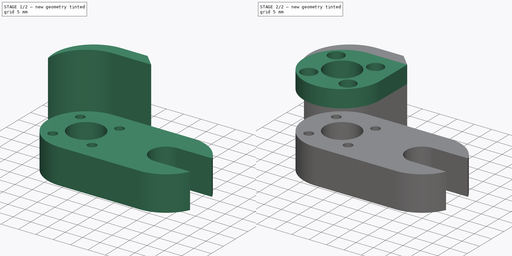
[diagram: build sequence overview — one tinted view per stage of 2, left to right]
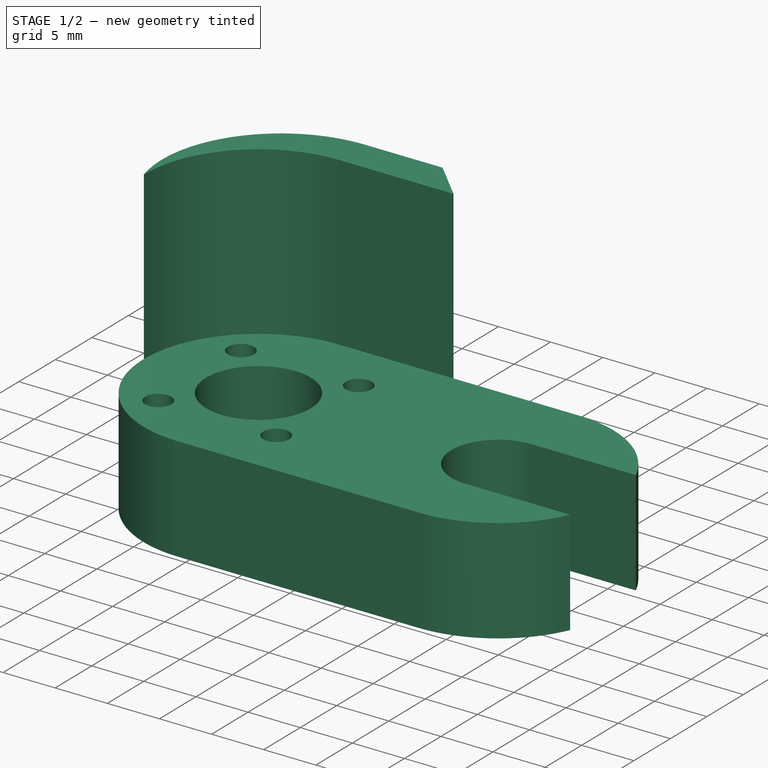
[diagram: stage 1 of 2 — iso view after this stage's code; geometry added in this stage tinted green]
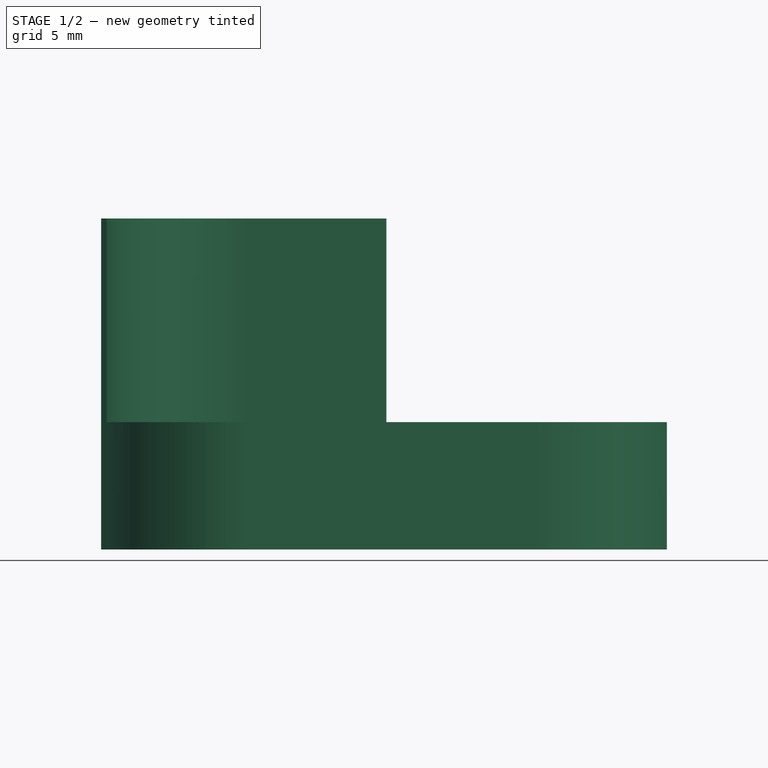
[diagram: stage 1 of 2 — front view after this stage's code; geometry added in this stage tinted green]
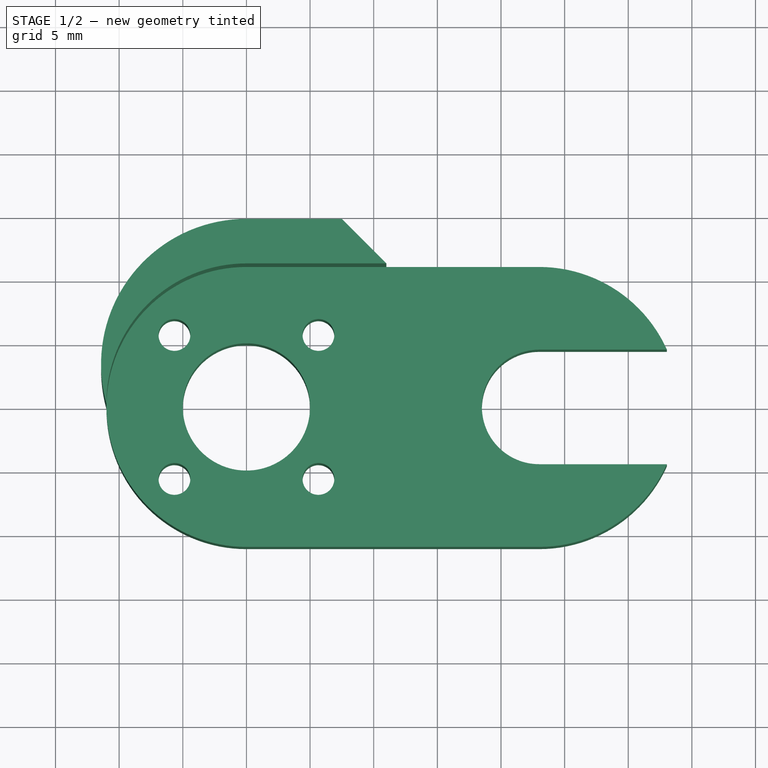
[diagram: stage 1 of 2 — top view after this stage's code; geometry added in this stage tinted green]
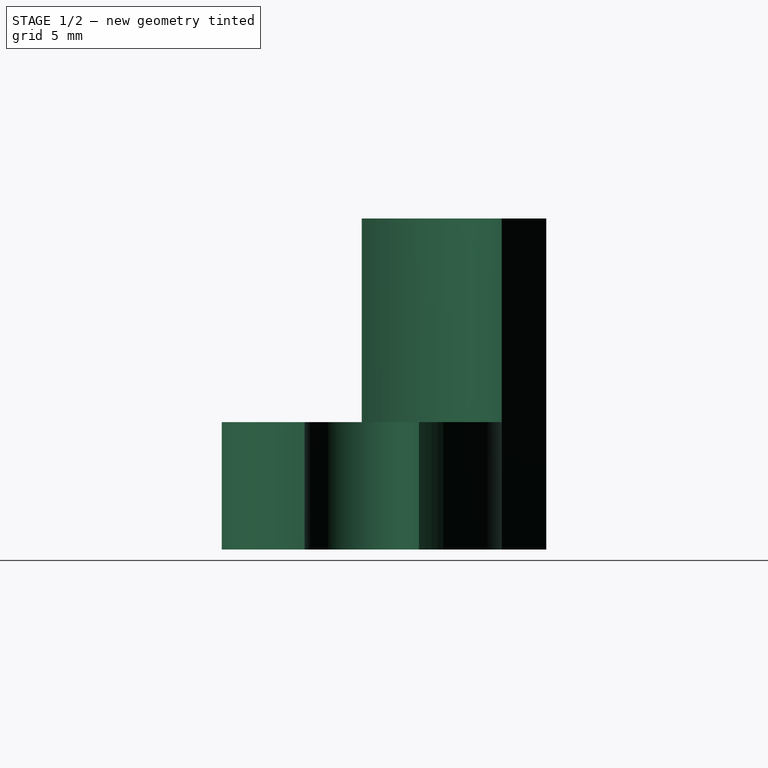
[diagram: stage 1 of 2 — right view after this stage's code; geometry added in this stage tinted green]
FCSTD DOCUMENT  (FreeCAD 0.18R4 (GitTag))
Label: ZAntiWobbler4
License: All rights reserved
LicenseURL: http://en.wikipedia.org/wiki/All_rights_reserved
objects: Sketcher::SketchObject×3, PartDesign::Pad×3, Spreadsheet::Sheet×2, PartDesign::Body×1
note: 10 computed .brp shape members not serialized (recipe doc carries the construction recipe); baked Part::Feature solids carry a one-line shape summary decoded from their .brp

FEATURE [Spreadsheet::Sheet] Spreadsheet  label="Dimensions"
  cells = A1=ZScrewHoleRadius; B1(ZScrewHoleRadius)==4mm; A2=ZScrewHoleHolderOuterRadius; B2(ZScrewHoleHolderOuterRadius)==5mm; A3=AntiWobblerRadius; B3(AntiWobblerRadius)==11mm; A4=AntiWobblerHeight; B4(AntiWobblerHeight)==10mm; A5=AntiWobblerM3ScrewSeparation; B5(AntiWobblerM3ScrewSeparation)==16mm; A6=ZscrewtoZGuideSeparation; B6(ZscrewtoZGuideSeparation)==23mm; A7=ZGuideRadius; B7(ZGuideRadius)==4mm; A8=ZGuideClearance; B8(ZGuideClearance)==0.5mm; A9=AntiWobblersSeparationHeight; B9(AntiWobblersSeparationHeight)==11mm; A10=AntiWobblersSeparationThickness; B10(AntiWobblersSeparationThickness)==3.5mm; A11=ZScrewHolderBottomHeight; B11(ZScrewHolderBottomHeight)==5mm
FEATURE [Sketcher::SketchObject] Sketch  label="Sketch_BaseZScrewHolder"
  MapMode = 5
  Support = -> [XY_Plane]
  expr: Constraints[25] = M3.M3ThreadRadius
  expr: Constraints[33] = Dimensions.AntiWobblerM3ScrewSeparation
  expr: Constraints[32] = Dimensions.AntiWobblerM3ScrewSeparation
  expr: Constraints[26] = M3.M3ThreadRadius
  expr: Constraints[27] = M3.M3ThreadRadius
  expr: Constraints[24] = M3.M3ThreadRadius
  expr: Constraints[12] = Dimensions.AntiWobblerRadius
  expr: Constraints[11] = Dimensions.AntiWobblerRadius
  expr: Constraints[42] = Dimensions.AntiWobblerM3ScrewSeparation / 2
  expr: Constraints[13] = Dimensions.ZGuideRadius + Dimensions.ZGuideClearance
  expr: Constraints[10] = Dimensions.ZscrewtoZGuideSeparation
  sketch-geometry (16):
    g0: LineSegment StartX=-1.3e-15 StartY=11 StartZ=0 EndX=23 EndY=11 EndZ=0
    g1: LineSegment StartX=23 StartY=-11 StartZ=0 EndX=-3.6e-15 EndY=-11 EndZ=0
    g2: ArcOfCircle CenterX=-4e-15 CenterY=4e-15 CenterZ=0 NormalX=0 NormalY=0 NormalZ=1 AngleXU=0 Radius=11 StartAngle=1.5708 EndAngle=3.14159
    g3: ArcOfCircle CenterX=23 CenterY=-6e-16 CenterZ=0 NormalX=0 NormalY=0 NormalZ=1 AngleXU=0 Radius=11 StartAngle=4.71239 EndAngle=5.86173
    g4: Circle CenterX=-4e-15 CenterY=4e-15 CenterZ=0 NormalX=0 NormalY=0 NormalZ=1 AngleXU=0 Radius=5
    g5: ArcOfCircle CenterX=23 CenterY=-6e-16 CenterZ=0 NormalX=0 NormalY=0 NormalZ=1 AngleXU=0 Radius=4.5 StartAngle=1.5708 EndAngle=4.71239
    g6: LineSegment StartX=23 StartY=4.5 StartZ=0 EndX=33.0374 EndY=4.5 EndZ=0
    g7: LineSegment StartX=23 StartY=-4.5 StartZ=0 EndX=33.0374 EndY=-4.5 EndZ=0
    g8: ArcOfCircle CenterX=23 CenterY=-6e-16 CenterZ=0 NormalX=0 NormalY=0 NormalZ=1 AngleXU=0 Radius=11 StartAngle=0.421458 EndAngle=1.5708
    g9: Circle CenterX=-5.65686 CenterY=5.65685 CenterZ=0 NormalX=0 NormalY=0 NormalZ=1 AngleXU=0 Radius=1.25
    g10: Circle CenterX=5.65686 CenterY=5.65685 CenterZ=0 NormalX=0 NormalY=0 NormalZ=1 AngleXU=0 Radius=1.25
    g11: Circle CenterX=5.65686 CenterY=-5.65685 CenterZ=0 NormalX=0 NormalY=0 NormalZ=1 AngleXU=0 Radius=1.25
    g12: Circle CenterX=-5.65683 CenterY=-5.65687 CenterZ=0 NormalX=0 NormalY=0 NormalZ=1 AngleXU=0 Radius=1.25
    g13: LineSegment [constr] StartX=-5.65686 StartY=5.65685 StartZ=0 EndX=5.65686 EndY=-5.65685 EndZ=0
    g14: LineSegment [constr] StartX=-5.65683 StartY=-5.65687 StartZ=0 EndX=5.65686 EndY=5.65685 EndZ=0
    g15: ArcOfCircle CenterX=-4e-15 CenterY=4e-15 CenterZ=0 NormalX=0 NormalY=0 NormalZ=1 AngleXU=0 Radius=11 StartAngle=3.14159 EndAngle=4.71239
  constraints (43):
    c: Horizontal(g0)
    c: Horizontal(g1)
    c: PointOnObject(g0,g-2)
    c: Coincident(g2,g0)
    c: Coincident(g8,g0)
    c: Coincident(g4,g2)
    c: Coincident(g5,g3)
    c: Horizontal(g6)
    c: Horizontal(g7)
    c: Radius(g4) = 5
    c: DistanceX(g2,g3) = 23
    c: Radius(g2) = 11
    c: Radius(g3) = 11
    c: Radius(g5) = 4.5
    c: Coincident(g2,g-1)
    c: Coincident(g3,g7)
    c: Coincident(g8,g6)
    c: Coincident(g3,g8)
    c: Coincident(g7,g5)
    c: Coincident(g3,g1)
    c: Vertical(g0,g5)
    c: Vertical(g1,g5)
    c: Vertical(g1,g2)
    c: Tangent(g6,g5) = 1.5708
    c: Radius(g9) = 1.25
    c: Radius(g10) = 1.25
    c: Radius(g12) = 1.25
    c: Radius(g11) = 1.25
    c: Coincident(g13,g9)
    c: Coincident(g13,g11)
    c: Coincident(g14,g12)
    c: Coincident(g14,g10)
    c: Distance(g14) = 16
    c: Distance(g13) = 16
    c: Perpendicular(g13,g14)
    c: Symmetric(g10,g9,g-2)
    c: Symmetric(g10,g11,g-1)
    c: Vertical(g5,g3)
    c: Coincident(g15,g2)
    c: Coincident(g15,g1)
    c: Coincident(g15,g2)
    c: Horizontal(g2,g2)
    c: Distance(g2,g12) = 8
FEATURE [PartDesign::Pad] Pad  label="Pad_BaseZScrewHolder"
  Length = 10
  Length2 = 100
  Profile = -> Sketch
  Type = 0
  expr: Length = Dimensions.AntiWobblerHeight
FEATURE [Spreadsheet::Sheet] Spreadsheet001  label="M3"
  cells = A1=M3ThreadRadius; B1(M3ThreadRadius)=1.25; A2=M3HeadRadius; B2(M3HeadRadius)=2.75; A3=M3HeadHeight; B3(M3HeadHeight)=3; A4=M3NutFlatToFlat_S; B4(M3NutFlatToFlat_S)=5.5; A5=M3NutThickness; B5(M3NutThickness)=2.4
FEATURE [Sketcher::SketchObject] Sketch002  label="Sketch_ZScrewHoldersSeparator"
  AttachmentOffset = pos=(0,0,-10) rot=(0,0,1;0rad)
  MapMode = 5
  Support = -> [Pad]
  expr: Constraints[20] = Dimensions.AntiWobblerRadius
  expr: Constraints[16] = Dimensions.AntiWobblerRadius + Dimensions.AntiWobblersSeparationThickness
  expr: Constraints[14] = Dimensions.AntiWobblerRadius
  sketch-geometry (10):
    g0: GeomPoint X=-11 Y=9e-16 Z=0
    g1: GeomPoint X=7e-16 Y=14.5 Z=0
    g2: GeomPoint X=7.5 Y=14.5 Z=0
    g3: GeomPoint X=11 Y=11 Z=0
    g4: GeomPoint X=0 Y=11 Z=0
    g5: ArcOfCircle CenterX=0 CenterY=0 CenterZ=0 NormalX=0 NormalY=0 NormalZ=1 AngleXU=0 Radius=11 StartAngle=1.5708 EndAngle=3.14159
    g6: ArcOfCircle CenterX=0 CenterY=3.07759 CenterZ=0 NormalX=0 NormalY=0 NormalZ=1 AngleXU=0 Radius=11.4224 StartAngle=1.5708 EndAngle=3.4144
    g7: LineSegment StartX=7e-16 StartY=14.5 StartZ=0 EndX=7.5 EndY=14.5 EndZ=0
    g8: LineSegment StartX=7.5 StartY=14.5 StartZ=0 EndX=11 EndY=11 EndZ=0
    g9: LineSegment StartX=11 StartY=11 StartZ=0 EndX=0 EndY=11 EndZ=0
  constraints (21):
    c: PointOnObject(g0,g-1)
    c: PointOnObject(g4,g-2)
    c: Vertical(g1,g-1)
    c: Coincident(g6,g1)
    c: Coincident(g6,g0)
    c: Coincident(g8,g2)
    c: Coincident(g8,g3)
    c: Coincident(g1,g7)
    c: Coincident(g0,g5)
    c: Coincident(g4,g9)
    c: Coincident(g9,g3)
    c: Coincident(g5,g4)
    c: Horizontal(g9)
    c: Coincident(g5,g-1)
    c: DistanceY(g5,g4) = 11
    c: Horizontal(g7)
    c: DistanceY(g5,g1) = 14.5
    c: Angle(g8,g9) = 0.785398
    c: Coincident(g2,g7)
    c: Vertical(g6,g5)
    c: DistanceX(g5,g3) = 11
FEATURE [PartDesign::Pad] Pad001  label="Pad_ZScrewHoldersSeparator"
  BaseFeature = -> Pad
  Length = 26
  Length2 = 100
  Profile = -> Sketch002
  Type = 0
  expr: Length = Dimensions.AntiWobblerHeight + Dimensions.AntiWobblersSeparationHeight + Dimensions.ZScrewHolderBottomHeight
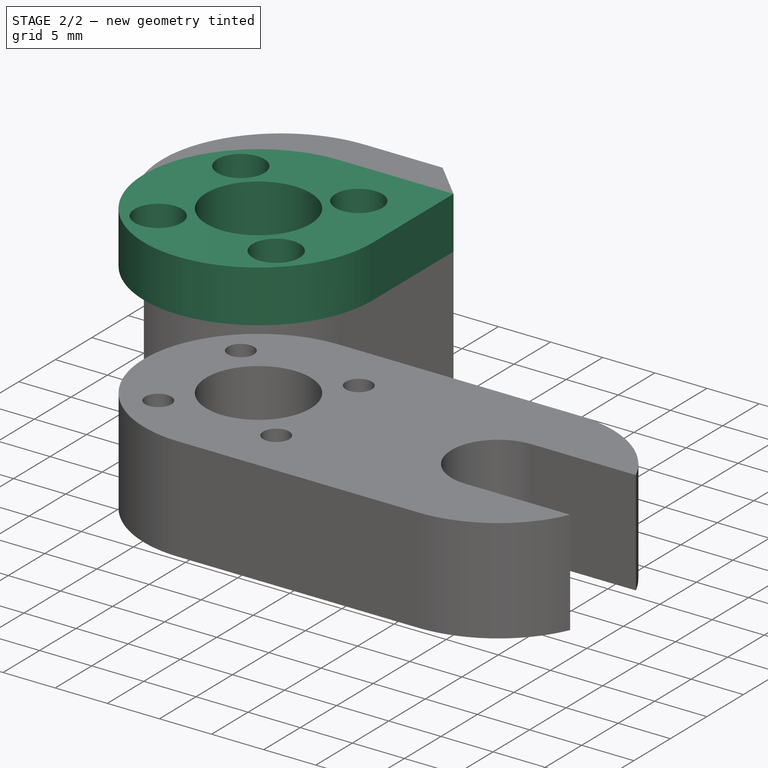
[diagram: stage 2 of 2 — iso view after this stage's code; geometry added in this stage tinted green]
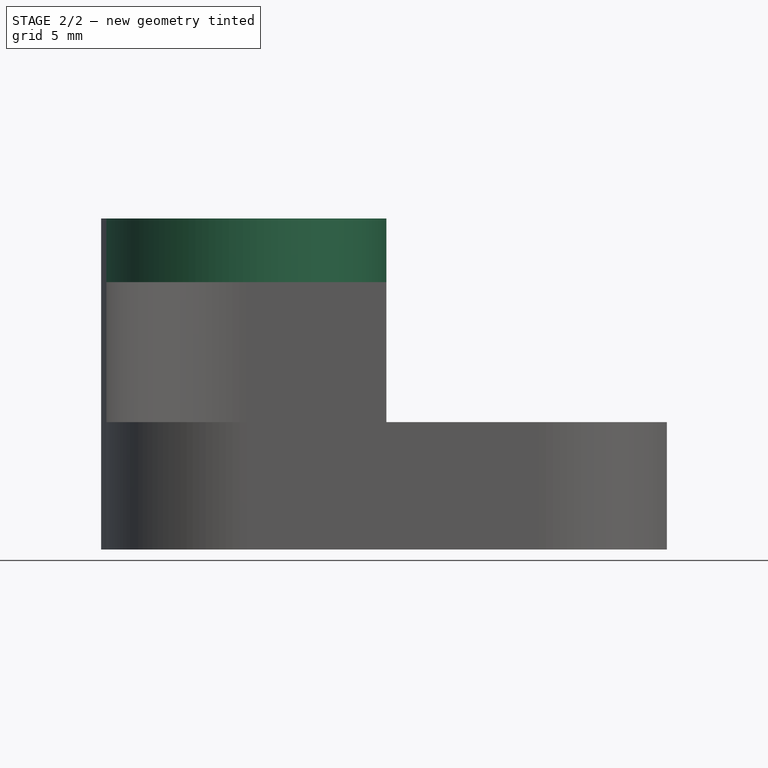
[diagram: stage 2 of 2 — front view after this stage's code; geometry added in this stage tinted green]
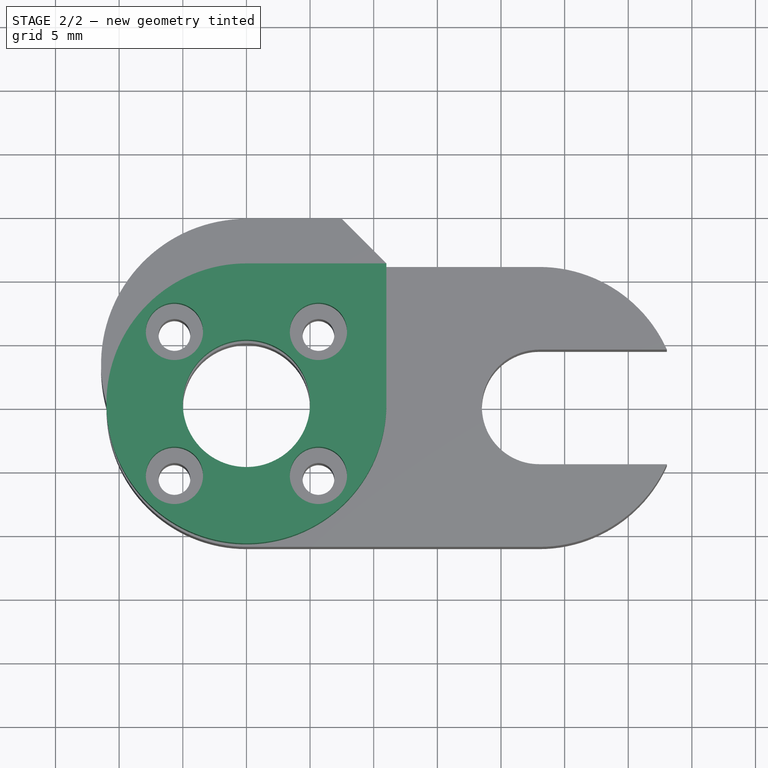
[diagram: stage 2 of 2 — top view after this stage's code; geometry added in this stage tinted green]
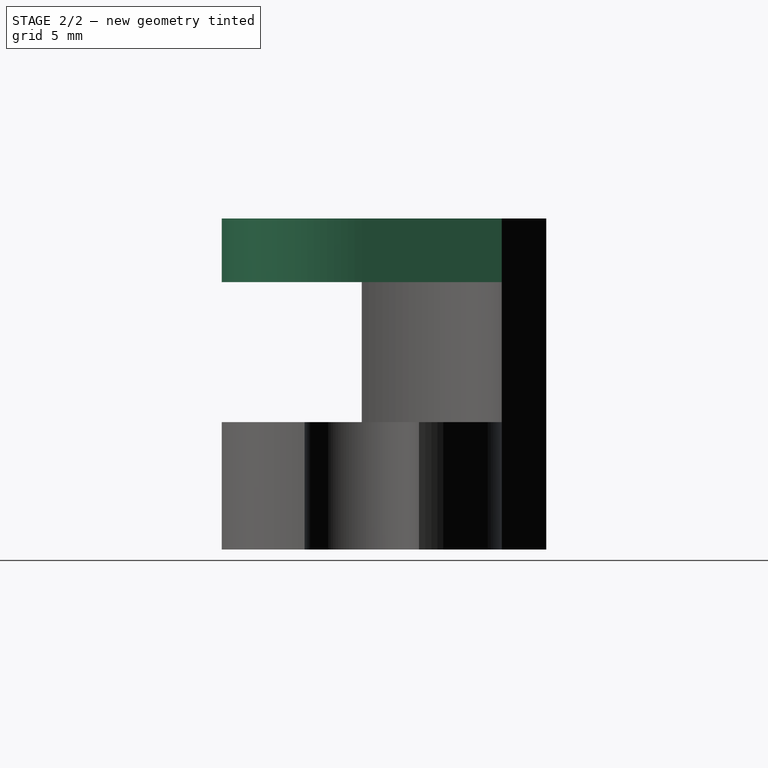
[diagram: stage 2 of 2 — right view after this stage's code; geometry added in this stage tinted green]
FEATURE [Sketcher::SketchObject] Sketch003  label="Sketch_BottomZScrewHolder"
  AttachmentOffset = pos=(0,26,-11) rot=(1,0,0;4.71239rad)
  MapMode = 5
  Placement = pos=(0,8.9e-15,26) rot=(0,0,1;0rad)
  Support = -> [Pad001]
  expr: Constraints[24] = Dimensions.ZScrewHoleHolderOuterRadius
  expr: Constraints[22] = Dimensions.AntiWobblerM3ScrewSeparation / 2
  expr: Constraints[21] = Dimensions.AntiWobblerRadius
  expr: Constraints[20] = Dimensions.AntiWobblerRadius
  expr: Constraints[19] = Dimensions.AntiWobblerRadius
  expr: Constraints[6] = Dimensions.AntiWobblerM3ScrewSeparation
  expr: AttachmentOffset.Base.y = Dimensions.AntiWobblersSeparationHeight + Dimensions.AntiWobblerHeight + Dimensions.ZScrewHolderBottomHeight
  expr: AttachmentOffset.Base.z = -Dimensions.AntiWobblerRadius
  expr: Constraints[3] = M3.M3ThreadRadius + 1
  expr: Constraints[0] = M3.M3ThreadRadius + 1
  expr: Constraints[2] = M3.M3ThreadRadius + 1
  expr: Constraints[11] = Dimensions.AntiWobblerM3ScrewSeparation
  expr: Constraints[1] = M3.M3ThreadRadius + 1
  sketch-geometry (10):
    g0: Circle CenterX=-5.65685 CenterY=5.65685 CenterZ=0 NormalX=0 NormalY=0 NormalZ=1 AngleXU=0 Radius=2.25
    g1: Circle CenterX=5.65685 CenterY=5.65685 CenterZ=0 NormalX=0 NormalY=0 NormalZ=1 AngleXU=0 Radius=2.25
    g2: Circle CenterX=5.65685 CenterY=-5.65685 CenterZ=0 NormalX=0 NormalY=0 NormalZ=1 AngleXU=0 Radius=2.25
    g3: Circle CenterX=-5.65685 CenterY=-5.65685 CenterZ=0 NormalX=0 NormalY=0 NormalZ=1 AngleXU=0 Radius=2.25
    g4: LineSegment [constr] StartX=-5.65685 StartY=5.65685 StartZ=0 EndX=5.65685 EndY=-5.65685 EndZ=0
    g5: LineSegment [constr] StartX=-5.65685 StartY=-5.65685 StartZ=0 EndX=5.65685 EndY=5.65685 EndZ=0
    g6: LineSegment StartX=7e-16 StartY=11 StartZ=0 EndX=11 EndY=11 EndZ=0
    g7: LineSegment StartX=11 StartY=11 StartZ=0 EndX=11 EndY=-3.6e-15 EndZ=0
    g8: ArcOfCircle CenterX=0 CenterY=0 CenterZ=0 NormalX=0 NormalY=0 NormalZ=1 AngleXU=0 Radius=11 StartAngle=1.5708 EndAngle=6.28319
    g9: Circle CenterX=0 CenterY=0 CenterZ=0 NormalX=0 NormalY=0 NormalZ=1 AngleXU=0 Radius=5
  constraints (25):
    c: Radius(g0) = 2.25
    c: Radius(g1) = 2.25
    c: Radius(g3) = 2.25
    c: Radius(g2) = 2.25
    c: Coincident(g4,g0)
    c: Coincident(g4,g2)
    c: Distance(g4) = 16
    c: Symmetric(g1,g2,g-1)
    c: Symmetric(g1,g0,g-2)
    c: Coincident(g5,g3)
    c: Coincident(g5,g1)
    c: Distance(g5) = 16
    c: Perpendicular(g5,g4)
    c: Horizontal(g6)
    c: Coincident(g7,g6)
    c: Vertical(g7)
    c: Coincident(g8,g-1)
    c: Coincident(g8,g6)
    c: Coincident(g8,g7)
    c: DistanceY(g7,g7) = 11
    c: DistanceX(g6,g6) = 11
    c: Radius(g8) = 11
    c: Distance(g8,g3) = 8
    c: Coincident(g9,g8)
    c: Radius(g9) = 5
FEATURE [PartDesign::Pad] Pad002  label="Pad_BottomZScrewHolder"
  BaseFeature = -> Pad001
  Length = 5
  Length2 = 100
  Profile = -> Sketch003
  Reversed = true
  Type = 0
  expr: Length = Dimensions.ZScrewHolderBottomHeight
FEATURE [PartDesign::Body] Body  label="Z Anti Wobbler"
  Group = -> [Sketch,Pad,Sketch002,Pad001,Sketch003,Pad002]
  Origin = -> Origin
  Tip = -> Pad002
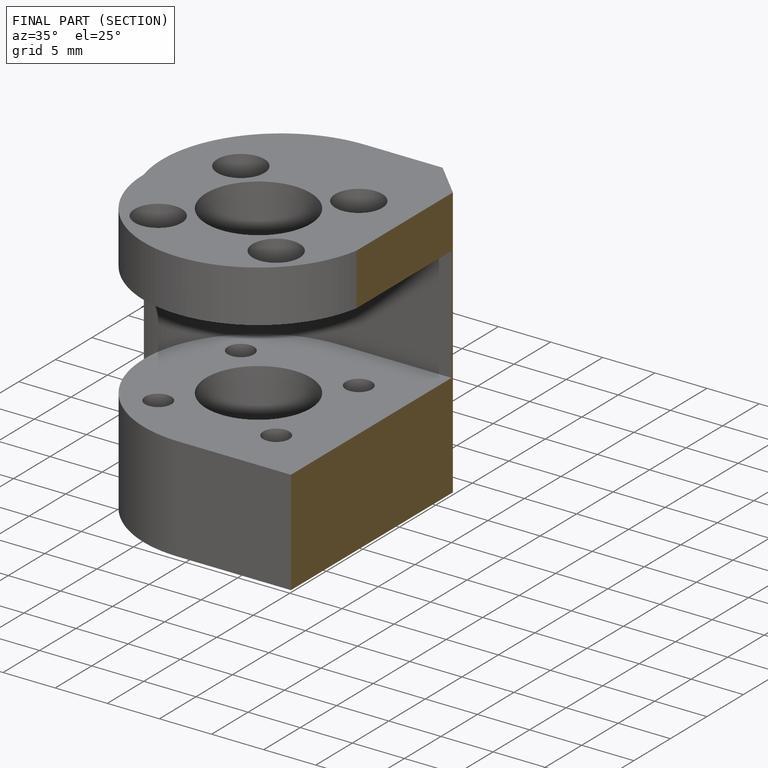
[diagram: finished part — half-section view (interior)]
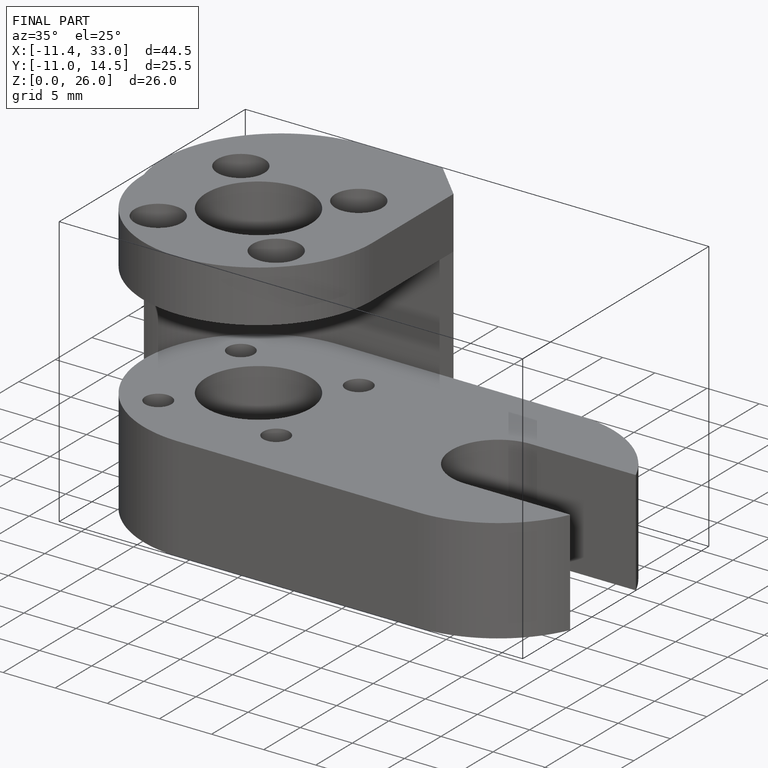
[diagram: finished part — iso view with bounding-box wireframe]
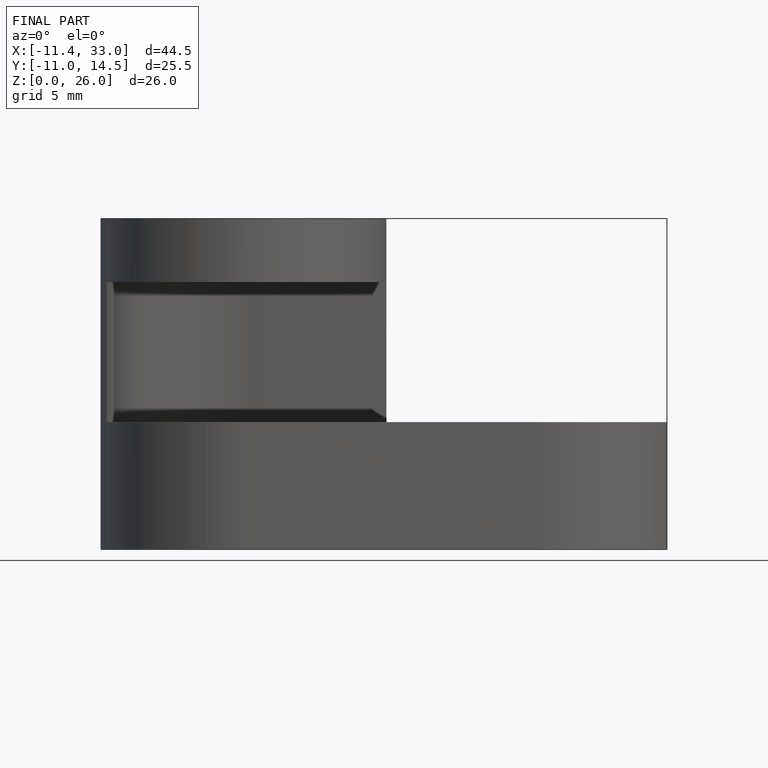
[diagram: finished part — front view with bounding-box wireframe]
